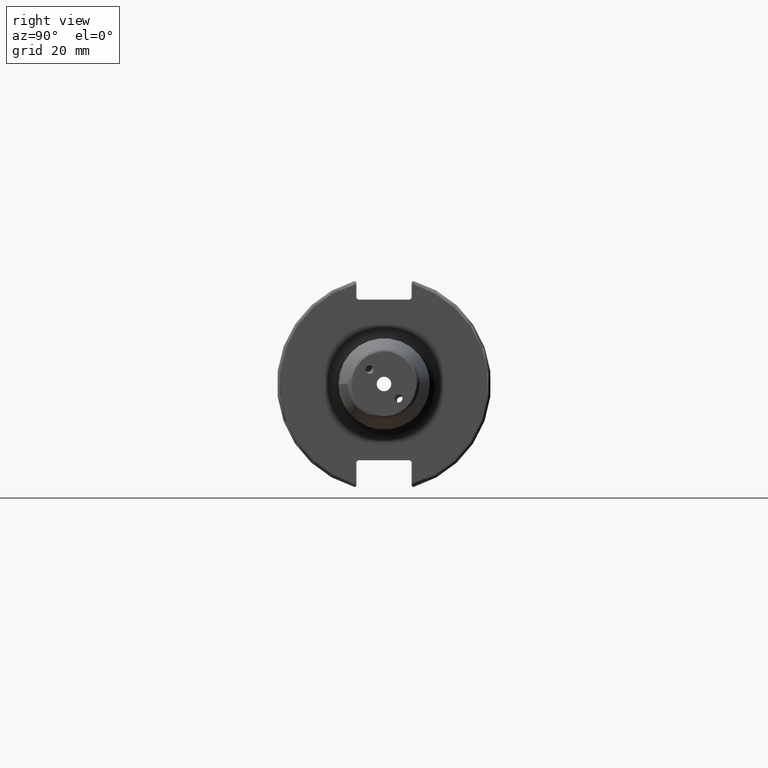
[diagram: clean part render]
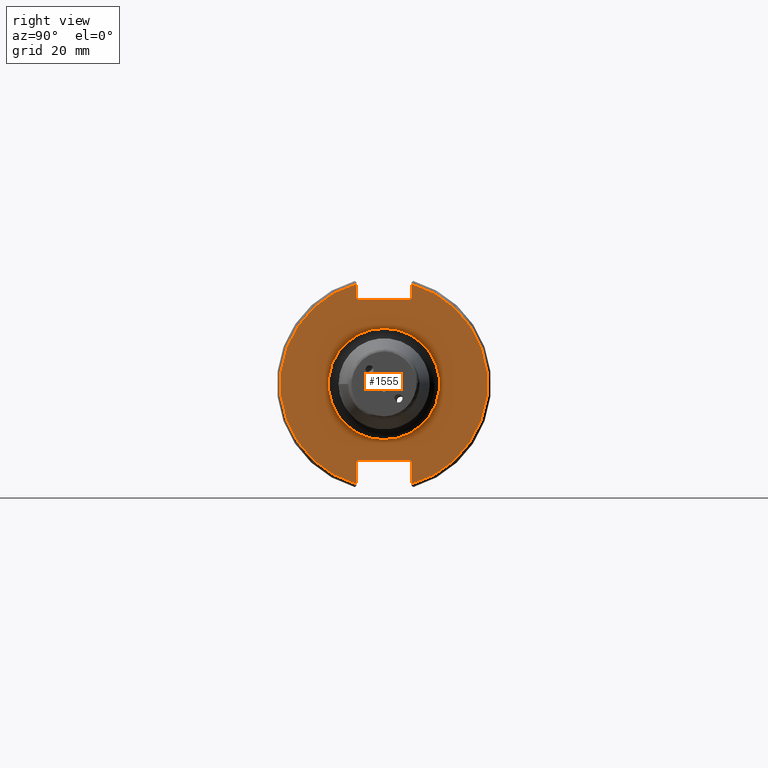
[diagram: same view with one face highlighted and labeled with its STEP entity id]
A machine part, right view. The second image highlights one B-rep face of the part: STEP entity #1555.
In plain terms, the highlighted planar face has unit normal (1, 0, 0).
Its self-contained STEP definition (entity closure, byte-faithful):
#66=FACE_BOUND('',#281,.T.);
#82=PLANE('',#1683);
#186=FACE_OUTER_BOUND('',#280,.T.);
#280=EDGE_LOOP('',(#1087,#1088,#1089,#1090,#1091,#1092,#1093,#1094,#1095,
#1096,#1097,#1098));
#281=EDGE_LOOP('',(#1099));
#383=LINE('',#2367,#481);
#384=LINE('',#2369,#482);
#385=LINE('',#2371,#483);
#386=LINE('',#2373,#484);
#387=LINE('',#2375,#485);
#388=LINE('',#2379,#486);
#389=LINE('',#2381,#487);
#390=LINE('',#2383,#488);
#391=LINE('',#2385,#489);
#392=LINE('',#2386,#490);
#481=VECTOR('',#1904,10.);
#482=VECTOR('',#1905,10.);
#483=VECTOR('',#1906,10.);
#484=VECTOR('',#1907,10.);
#485=VECTOR('',#1908,10.);
#486=VECTOR('',#1911,10.);
#487=VECTOR('',#1912,10.);
#488=VECTOR('',#1913,10.);
#489=VECTOR('',#1914,10.);
#490=VECTOR('',#1915,10.);
#583=CIRCLE('',#1680,16.5);
#585=CIRCLE('',#1684,30.75);
#586=CIRCLE('',#1685,30.75);
#661=VERTEX_POINT('',#2356);
#662=VERTEX_POINT('',#2363);
#663=VERTEX_POINT('',#2364);
#664=VERTEX_POINT('',#2366);
#665=VERTEX_POINT('',#2368);
#666=VERTEX_POINT('',#2370);
#667=VERTEX_POINT('',#2372);
#668=VERTEX_POINT('',#2374);
#669=VERTEX_POINT('',#2376);
#670=VERTEX_POINT('',#2378);
#671=VERTEX_POINT('',#2380);
#672=VERTEX_POINT('',#2382);
#673=VERTEX_POINT('',#2384);
#825=EDGE_CURVE('',#661,#661,#583,.T.);
#828=EDGE_CURVE('',#662,#663,#585,.T.);
#829=EDGE_CURVE('',#662,#664,#383,.T.);
#830=EDGE_CURVE('',#665,#664,#384,.T.);
#831=EDGE_CURVE('',#665,#666,#385,.T.);
#832=EDGE_CURVE('',#667,#666,#386,.T.);
#833=EDGE_CURVE('',#667,#668,#387,.T.);
#834=EDGE_CURVE('',#669,#668,#586,.T.);
#835=EDGE_CURVE('',#669,#670,#388,.T.);
#836=EDGE_CURVE('',#671,#670,#389,.T.);
#837=EDGE_CURVE('',#671,#672,#390,.T.);
#838=EDGE_CURVE('',#673,#672,#391,.T.);
#839=EDGE_CURVE('',#673,#663,#392,.T.);
#1087=ORIENTED_EDGE('',*,*,#828,.F.);
#1088=ORIENTED_EDGE('',*,*,#829,.T.);
#1089=ORIENTED_EDGE('',*,*,#830,.F.);
#1090=ORIENTED_EDGE('',*,*,#831,.T.);
#1091=ORIENTED_EDGE('',*,*,#832,.F.);
#1092=ORIENTED_EDGE('',*,*,#833,.T.);
#1093=ORIENTED_EDGE('',*,*,#834,.F.);
#1094=ORIENTED_EDGE('',*,*,#835,.T.);
#1095=ORIENTED_EDGE('',*,*,#836,.F.);
#1096=ORIENTED_EDGE('',*,*,#837,.T.);
#1097=ORIENTED_EDGE('',*,*,#838,.F.);
#1098=ORIENTED_EDGE('',*,*,#839,.T.);
#1099=ORIENTED_EDGE('',*,*,#825,.F.);
#1555=ADVANCED_FACE('',(#186,#66),#82,.T.);
#1680=AXIS2_PLACEMENT_3D('',#2358,#1893,#1894);
#1683=AXIS2_PLACEMENT_3D('',#2362,#1900,#1901);
#1684=AXIS2_PLACEMENT_3D('',#2365,#1902,#1903);
#1685=AXIS2_PLACEMENT_3D('',#2377,#1909,#1910);
#1893=DIRECTION('center_axis',(1.,0.,0.));
#1894=DIRECTION('ref_axis',(0.,-1.,-1.22464679914735E-16));
#1900=DIRECTION('center_axis',(1.,0.,0.));
#1901=DIRECTION('ref_axis',(0.,0.,-1.));
#1902=DIRECTION('center_axis',(-1.,0.,0.));
#1903=DIRECTION('ref_axis',(0.,1.,-6.12323399573677E-17));
#1904=DIRECTION('',(0.,0.,-1.));
#1905=DIRECTION('',(0.,0.707106781186549,0.707106781186546));
#1906=DIRECTION('',(0.,-1.,0.));
#1907=DIRECTION('',(0.,0.70710678118655,-0.707106781186545));
#1908=DIRECTION('',(0.,0.,1.));
#1909=DIRECTION('center_axis',(-1.,0.,0.));
#1910=DIRECTION('ref_axis',(0.,-1.,1.60812264967664E-16));
#1911=DIRECTION('',(0.,0.,1.));
#1912=DIRECTION('',(0.,-0.707106781186549,-0.707106781186546));
#1913=DIRECTION('',(0.,1.,0.));
#1914=DIRECTION('',(0.,-0.707106781186549,0.707106781186546));
#1915=DIRECTION('',(0.,0.,-1.));
#2356=CARTESIAN_POINT('',(19.05,-2.02066721859313E-15,-16.5));
#2358=CARTESIAN_POINT('Origin',(19.05,0.,0.));
#2362=CARTESIAN_POINT('Origin',(19.05,0.,0.));
#2363=CARTESIAN_POINT('',(19.05,8.19,29.6392712461019));
#2364=CARTESIAN_POINT('',(19.05,8.19,-29.6392712461019));
#2365=CARTESIAN_POINT('Origin',(19.05,0.,0.));
#2366=CARTESIAN_POINT('',(19.05,8.19,25.5));
#2367=CARTESIAN_POINT('',(19.05,8.19,12.5));
#2368=CARTESIAN_POINT('',(19.05,7.69,25.));
#2369=CARTESIAN_POINT('',(19.05,-0.35750000000001,16.9525));
#2370=CARTESIAN_POINT('',(19.05,-7.69,25.));
#2371=CARTESIAN_POINT('',(19.05,0.,25.));
#2372=CARTESIAN_POINT('',(19.05,-8.19,25.5));
#2373=CARTESIAN_POINT('',(19.05,0.357500000000014,16.9525));
#2374=CARTESIAN_POINT('',(19.05,-8.19,29.6392712461019));
#2375=CARTESIAN_POINT('',(19.05,-8.19,12.5));
#2376=CARTESIAN_POINT('',(19.05,-8.19,-29.6392712461019));
#2377=CARTESIAN_POINT('Origin',(19.05,0.,0.));
#2378=CARTESIAN_POINT('',(19.05,-8.19,-23.1));
#2379=CARTESIAN_POINT('',(19.05,-8.19,-11.3));
#2380=CARTESIAN_POINT('',(19.05,-7.69,-22.6));
#2381=CARTESIAN_POINT('',(19.05,-0.242499999999991,-15.1525));
#2382=CARTESIAN_POINT('',(19.05,7.69,-22.6));
#2383=CARTESIAN_POINT('',(19.05,-2.77555756156289E-16,-22.6));
#2384=CARTESIAN_POINT('',(19.05,8.19,-23.1));
#2385=CARTESIAN_POINT('',(19.05,0.242499999999989,-15.1525));
#2386=CARTESIAN_POINT('',(19.05,8.19,-11.3));